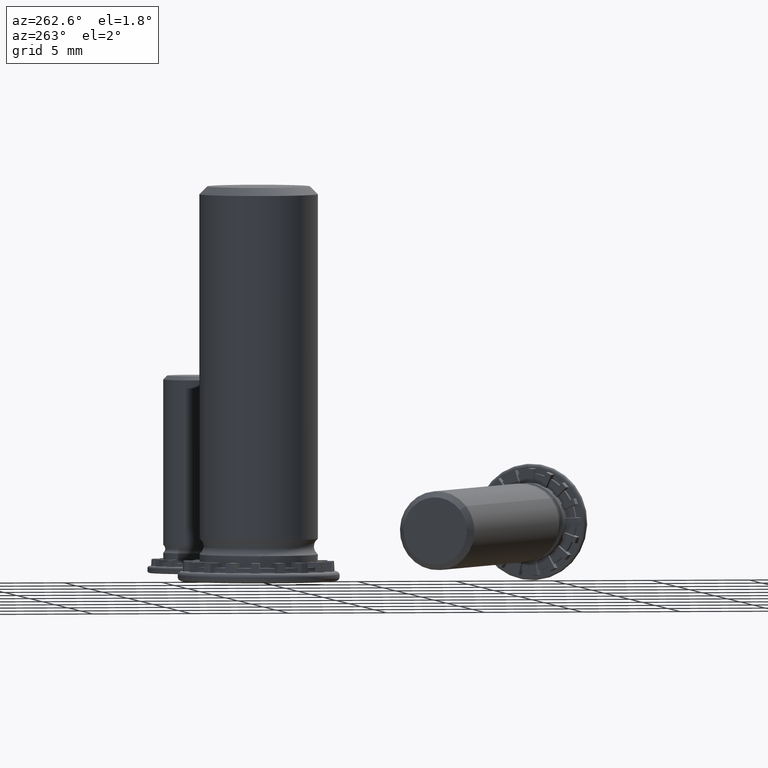
[diagram: clean part render]
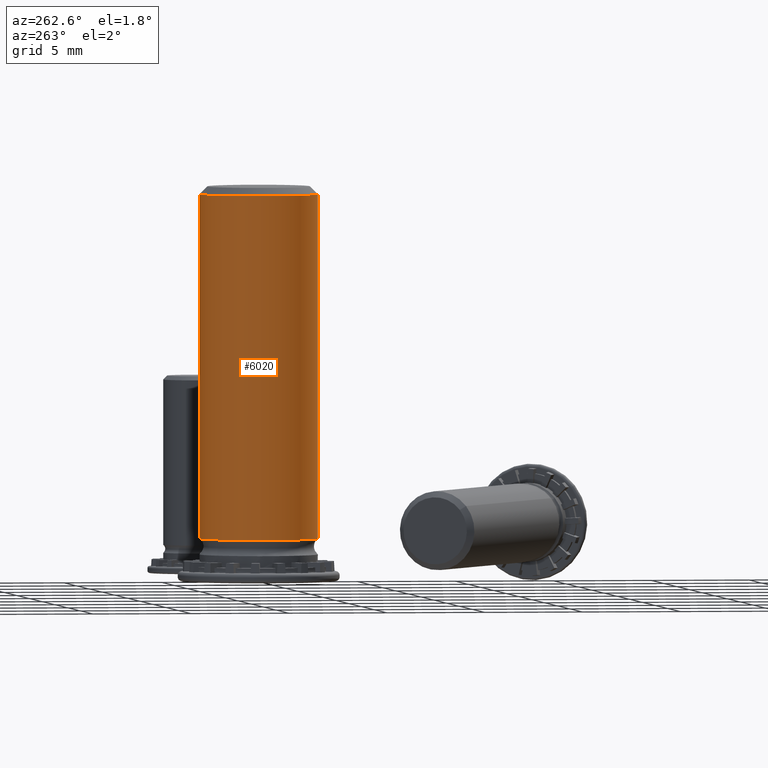
[diagram: same view with one face highlighted and labeled with its STEP entity id]
A machine part, auxiliary view. The second image highlights one B-rep face of the part: STEP entity #6020.
In plain terms, the highlighted cylindrical surface (bore or boss wall) has radius 3 mm, axis along (0, 0, -1).
Its self-contained STEP definition (entity closure, byte-faithful):
#65=FACE_BOUND('',#1180,.T.);
#128=CYLINDRICAL_SURFACE('',#6876,3.);
#449=CIRCLE('',#6874,3.);
#450=CIRCLE('',#6877,3.);
#831=FACE_OUTER_BOUND('',#1179,.T.);
#1179=EDGE_LOOP('',(#5404));
#1180=EDGE_LOOP('',(#5405));
#2710=VERTEX_POINT('',#10976);
#2711=VERTEX_POINT('',#10980);
#3634=EDGE_CURVE('',#2710,#2710,#449,.T.);
#3635=EDGE_CURVE('',#2711,#2711,#450,.T.);
#5404=ORIENTED_EDGE('',*,*,#3634,.F.);
#5405=ORIENTED_EDGE('',*,*,#3635,.F.);
#6020=ADVANCED_FACE('',(#831,#65),#128,.T.);
#6874=AXIS2_PLACEMENT_3D('',#10977,#8880,#8881);
#6876=AXIS2_PLACEMENT_3D('',#10979,#8884,#8885);
#6877=AXIS2_PLACEMENT_3D('',#10981,#8886,#8887);
#8880=DIRECTION('center_axis',(3.05311331771918E-16,0.,1.));
#8881=DIRECTION('ref_axis',(1.,0.,-3.05311331771918E-16));
#8884=DIRECTION('center_axis',(-3.05311331771918E-16,0.,-1.));
#8885=DIRECTION('ref_axis',(-1.,0.,3.05311331771918E-16));
#8886=DIRECTION('center_axis',(-3.05311331771918E-16,0.,-1.));
#8887=DIRECTION('ref_axis',(-1.,0.,3.05311331771918E-16));
#10976=CARTESIAN_POINT('',(3.00000000000001,-3.67394039744206E-16,19.6));
#10977=CARTESIAN_POINT('Origin',(5.98410210272959E-15,0.,19.6));
#10979=CARTESIAN_POINT('Origin',(7.86176679312688E-16,0.,2.575));
#10980=CARTESIAN_POINT('',(3.,-3.67394039744206E-16,2.15));
#10981=CARTESIAN_POINT('Origin',(6.56419363309623E-16,0.,2.15));